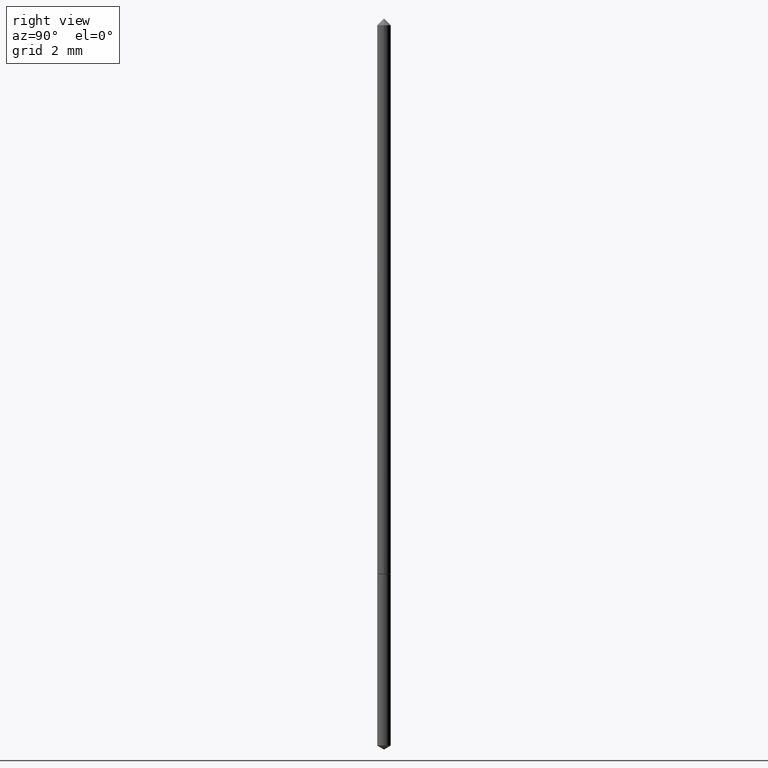
[diagram: clean part render]
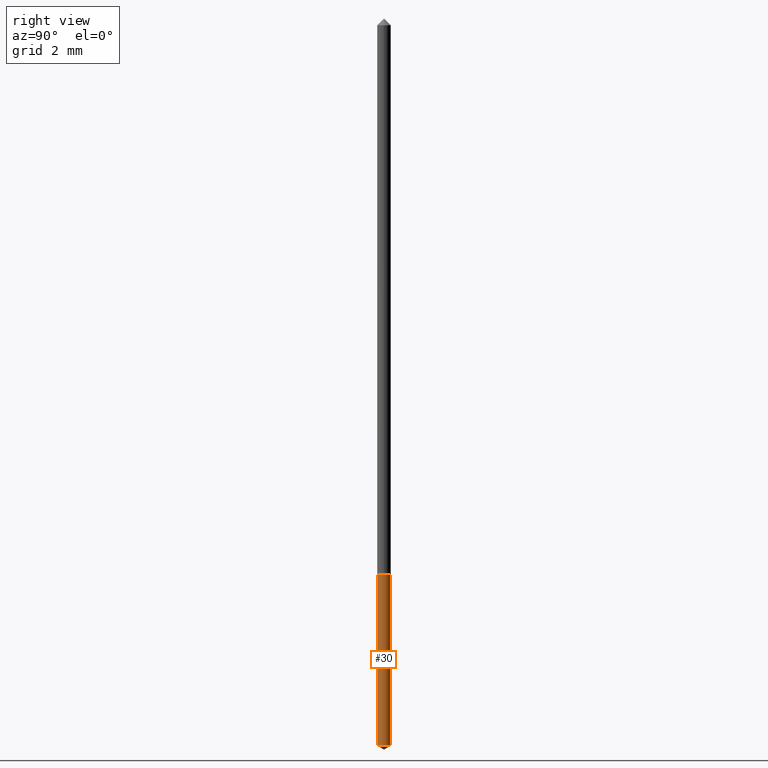
[diagram: same view with one face highlighted and labeled with its STEP entity id]
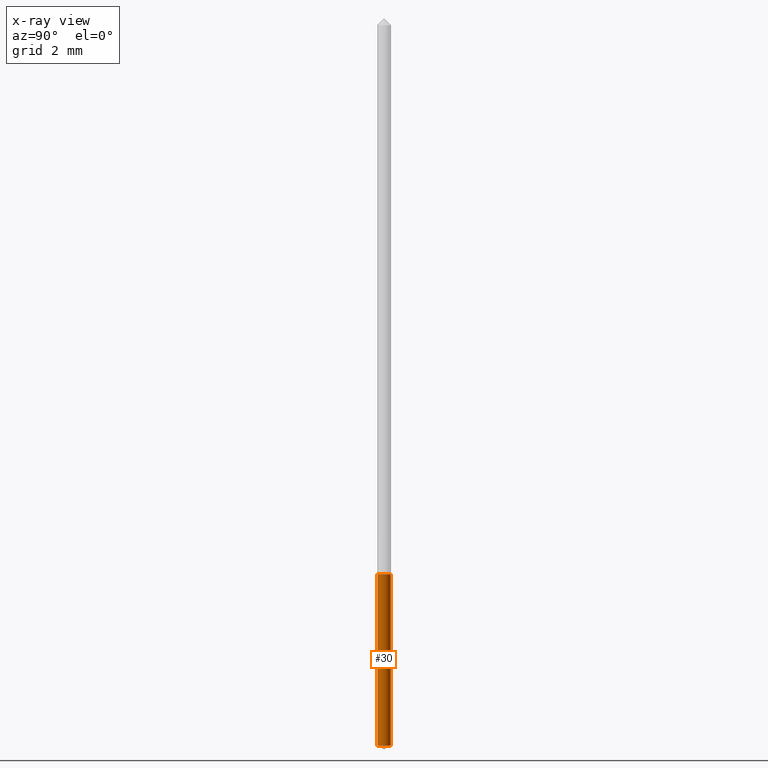
[diagram: x-ray of the same camera — body ghosted, the highlighted face saturated]
A machine part, right view. The second image highlights one B-rep face of the part: STEP entity #30.
The next image is the same camera in x-ray: the body ghosted, the highlighted face saturated — about 0% of this face is hidden behind the body in this view.
In plain terms, the highlighted cylindrical surface (edge-blend (fillet) strip) has radius 0.1714 mm, axis along (-0, 0, 1).
Its self-contained STEP definition (entity closure, byte-faithful):
#20 = CIRCLE ( 'NONE', #117, 0.006749999999999999924 ) ;
#30 = ADVANCED_FACE ( 'NONE', ( #354 ), #125, .T. ) ;
#31 = EDGE_LOOP ( 'NONE', ( #80, #188, #87, #157 ) ) ;
#33 = CARTESIAN_POINT ( 'NONE',  ( 4.796163466382499209E-17, 0.006749999999997394369, -0.7459441908215641570 ) ) ;
#49 = DIRECTION ( 'NONE',  ( -2.445574428744949876E-29, 3.491330081325830103E-15, 1.000000000000000000 ) ) ;
#69 = DIRECTION ( 'NONE',  ( -2.445574428744949876E-29, 3.491330081325830103E-15, 1.000000000000000000 ) ) ;
#74 = LINE ( 'NONE', #107, #260 ) ;
#80 = ORIENTED_EDGE ( 'NONE', *, *, #347, .T. ) ;
#82 = EDGE_CURVE ( 'NONE', #97, #244, #283, .T. ) ;
#87 = ORIENTED_EDGE ( 'NONE', *, *, #88, .F. ) ;
#88 = EDGE_CURVE ( 'NONE', #244, #224, #164, .T. ) ;
#97 = VERTEX_POINT ( 'NONE', #334 ) ;
#100 = AXIS2_PLACEMENT_3D ( 'NONE', #108, #49, #161 ) ;
#103 = CARTESIAN_POINT ( 'NONE',  ( 4.796163466382502906E-17, 0.006749999999997988512, -0.5760000000000000675 ) ) ;
#107 = CARTESIAN_POINT ( 'NONE',  ( 4.796163466382084440E-17, 0.006749999999997988512, -0.5760000000000000675 ) ) ;
#108 = CARTESIAN_POINT ( 'NONE',  ( 1.408590032362638810E-29, -2.011093251173652181E-15, -0.5760000000000000675 ) ) ;
#109 = EDGE_CURVE ( 'NONE', #327, #224, #74, .T. ) ;
#117 = AXIS2_PLACEMENT_3D ( 'NONE', #146, #285, #203 ) ;
#118 = CARTESIAN_POINT ( 'NONE',  ( -4.713499807436820261E-17, -0.006750000000002011336, -0.5760000000000000675 ) ) ;
#125 = CYLINDRICAL_SURFACE ( 'NONE', #208, 0.006749999999999999924 ) ;
#137 = VECTOR ( 'NONE', #138, 39.37007874015748143 ) ;
#138 = DIRECTION ( 'NONE',  ( -2.445574428744950156E-29, 3.491330081325830103E-15, 1.000000000000000000 ) ) ;
#146 = CARTESIAN_POINT ( 'NONE',  ( 1.824201199749608100E-29, -2.604424516735556116E-15, -0.7459441908215641570 ) ) ;
#157 = ORIENTED_EDGE ( 'NONE', *, *, #82, .F. ) ;
#161 = DIRECTION ( 'NONE',  ( -6.982962677686265133E-15, -1.000000000000000000, 0.000000000000000000 ) ) ;
#164 = CIRCLE ( 'NONE', #100, 0.006749999999999999924 ) ;
#188 = ORIENTED_EDGE ( 'NONE', *, *, #109, .T. ) ;
#189 = DIRECTION ( 'NONE',  ( -6.982962677686265133E-15, -1.000000000000000000, 0.000000000000000000 ) ) ;
#203 = DIRECTION ( 'NONE',  ( -6.982962677686265133E-15, -1.000000000000000000, 0.000000000000000000 ) ) ;
#208 = AXIS2_PLACEMENT_3D ( 'NONE', #330, #69, #189 ) ;
#224 = VERTEX_POINT ( 'NONE', #103 ) ;
#244 = VERTEX_POINT ( 'NONE', #118 ) ;
#260 = VECTOR ( 'NONE', #300, 39.37007874015748143 ) ;
#283 = LINE ( 'NONE', #332, #137 ) ;
#285 = DIRECTION ( 'NONE',  ( -2.445574428744949876E-29, 3.491330081325830103E-15, 1.000000000000000000 ) ) ;
#300 = DIRECTION ( 'NONE',  ( -2.445574428744950156E-29, 3.491330081325830103E-15, 1.000000000000000000 ) ) ;
#327 = VERTEX_POINT ( 'NONE', #33 ) ;
#330 = CARTESIAN_POINT ( 'NONE',  ( 1.408590032362638810E-29, -2.011093251173652181E-15, -0.5760000000000000675 ) ) ;
#332 = CARTESIAN_POINT ( 'NONE',  ( -4.713499807436820261E-17, -0.006750000000002011336, -0.5760000000000000675 ) ) ;
#334 = CARTESIAN_POINT ( 'NONE',  ( -4.713499807436404260E-17, -0.006750000000002602876, -0.7459441908215641570 ) ) ;
#347 = EDGE_CURVE ( 'NONE', #97, #327, #20, .T. ) ;
#354 = FACE_OUTER_BOUND ( 'NONE', #31, .T. ) ;